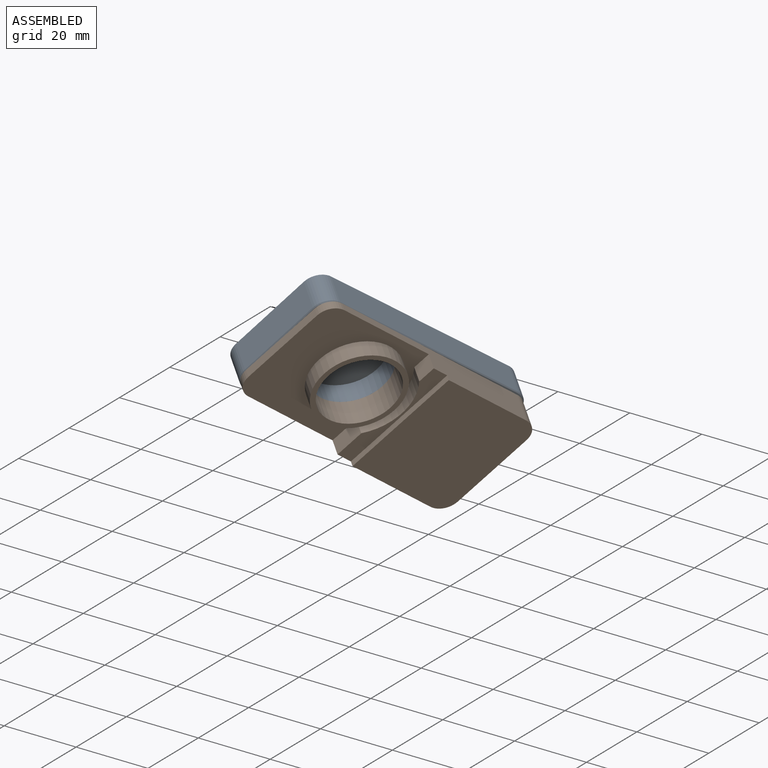
[diagram: assembled view]
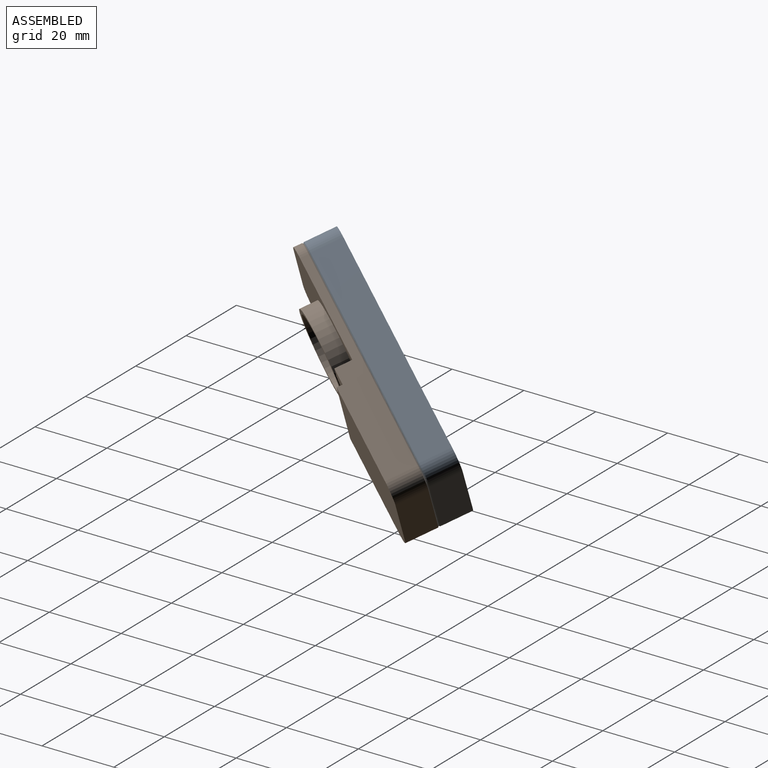
[diagram: assembled view, second angle]
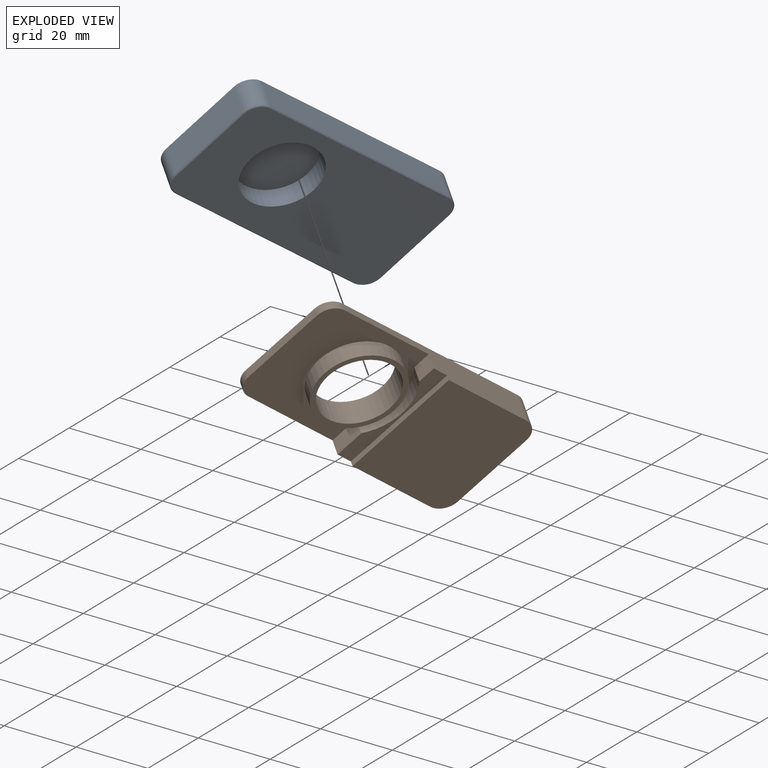
[diagram: exploded view]
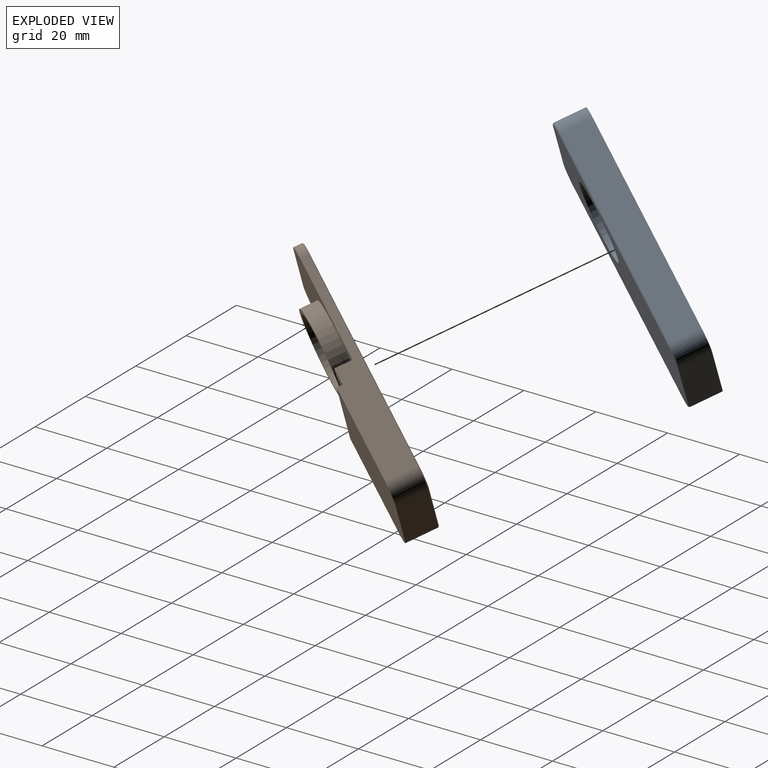
[diagram: exploded view, second angle]
ASSEMBLY  parts=2 mates=2
PART A: 20 faces, bbox 67.6x32x8.6 mm
  f0: plane 20.57x20.57mm, normal (0,0,1), area 332.5mm2, adj f1
  f1: cylinder r=10.29mm len=20.57mm, axis (0,0,1), area 348.9mm2, adj f0,f2
  f2: plane 67.06x31.5mm, normal (0,0,1), area 1763.5mm2, adj f1,f12,f13,f14,f15,f16,f17,f18
  f3: plane 22.86x8.32mm, normal (-1,0,0), area 190.2mm2, adj f4,f5,f11,f18
  f4: cylinder r=4.57mm len=8.32mm, axis (0,0,1), area 59.7mm2, adj f3,f6,f11,f16
  f5: cylinder r=4.57mm len=8.32mm, axis (0,0,1), area 59.7mm2, adj f3,f7,f11,f19
  f6: plane 58.42x8.32mm, normal (0,-1,0), area 486mm2, adj f4,f8,f11,f14
  f7: plane 58.42x8.32mm, normal (0,1,0), area 486mm2, adj f5,f10,f11,f17
  f8: cylinder r=4.57mm len=8.32mm, axis (0,0,1), area 59.7mm2, adj f6,f9,f11,f12
  f9: plane 22.86x8.32mm, normal (1,0,0), area 190.2mm2, adj f8,f10,f11,f13
  f10: cylinder r=4.57mm len=8.32mm, axis (0,0,1), area 59.7mm2, adj f7,f9,f11,f15
  f11: plane 67.56x32mm, normal (0,0,-1), area 2144.4mm2, adj f3,f4,f5,f6,f7,f8,f9,f10
  f12: cone r=4.32mm half-angle=45deg, axis (0,0,-1), area 2.5mm2, adj f2,f8,f13,f14
  f13: plane 22.86x0.25mm, normal (0.71,0,0.71), area 8.2mm2, adj f2,f9,f12,f15
  f14: plane 58.42x0.25mm, normal (0,-0.71,0.71), area 21mm2, adj f2,f6,f12,f16
  f15: cone r=4.32mm half-angle=45deg, axis (0,0,-1), area 2.5mm2, adj f2,f10,f13,f17
  f16: cone r=4.32mm half-angle=45deg, axis (0,0,-1), area 2.5mm2, adj f2,f4,f14,f18
  f17: plane 58.42x0.25mm, normal (0,0.71,0.71), area 21mm2, adj f2,f7,f15,f19
  f18: plane 22.86x0.25mm, normal (-0.71,0,0.71), area 8.2mm2, adj f2,f3,f16,f19
  f19: cone r=4.32mm half-angle=45deg, axis (0,0,-1), area 2.5mm2, adj f2,f5,f17,f18
PART B: 27 faces, bbox 67.6x32x8.6 mm
  f0: plane 22.86x2.22mm, normal (-1,0,0), area 50.8mm2, adj f4,f5,f11,f20
  f1: plane 58.42x8.32mm, normal (0,-1,0), area 308.1mm2, adj f4,f6,f8,f9,f10,f11,f12,f24
  f2: plane 58.42x8.32mm, normal (0,1,0), area 308.1mm2, adj f5,f7,f8,f9,f10,f11,f14,f21
  f3: plane 22.86x8.32mm, normal (1,0,0), area 190.2mm2, adj f6,f7,f9,f25
  f4: cylinder r=4.57mm len=4.57mm, axis (0,0,1), area 16mm2, adj f0,f1,f11,f22
  f5: cylinder r=4.57mm len=4.57mm, axis (0,0,1), area 16mm2, adj f0,f2,f11,f19
  f6: cylinder r=4.57mm len=8.32mm, axis (0,0,1), area 59.7mm2, adj f1,f3,f9,f26
  f7: cylinder r=4.57mm len=8.32mm, axis (0,0,1), area 59.7mm2, adj f2,f3,f9,f23
  f8: plane 32x4.45mm, normal (0,0,1), area 91.2mm2, adj f1,f2,f10,f12,f13,f14
  f9: plane 32x30.48mm, normal (0,0,1), area 966.5mm2, adj f1,f2,f3,f6,f7,f10
  f10: plane 32x1.52mm, normal (-1,0,0), area 48.8mm2, adj f1,f2,f8,f9
  f11: plane 36.49x32mm, normal (0,0,1), area 657.8mm2, adj f0,f1,f2,f4,f5,f12,f13,f14
  f12: plane 7.88x4.57mm, normal (-1,0,0), area 36mm2, adj f1,f8,f11,f13
  f13: cylinder r=14.01mm len=19.29mm, axis (0,0,1), area 97.3mm2, adj f8,f11,f12,f14
  f14: plane 4.84x4.57mm, normal (-1,0,0), area 22.1mm2, adj f2,f8,f11,f13
  f15: cylinder r=11.68mm len=23.37mm, axis (0,0,1), area 335.6mm2, adj f11,f17
  f16: cylinder r=10.29mm len=20.57mm, axis (0,0,1), area 455.6mm2, adj f17,f18
  f17: plane 23.37x23.37mm, normal (0,0,1), area 96.4mm2, adj f15,f16
  f18: plane 67.06x31.5mm, normal (0,0,-1), area 1763.5mm2, adj f16,f19,f20,f21,f22,f23,f24,f25
  f19: cone r=4.57mm half-angle=45deg, axis (0,0,1), area 2.5mm2, adj f5,f18,f20,f21
  f20: plane 22.86x0.25mm, normal (-0.71,0,-0.71), area 8.2mm2, adj f0,f18,f19,f22
  f21: plane 58.42x0.25mm, normal (0,0.71,-0.71), area 21mm2, adj f2,f18,f19,f23
  f22: cone r=4.57mm half-angle=45deg, axis (0,0,1), area 2.5mm2, adj f4,f18,f20,f24
  f23: cone r=4.57mm half-angle=45deg, axis (0,0,1), area 2.5mm2, adj f7,f18,f21,f25
  f24: plane 58.42x0.25mm, normal (0,-0.71,-0.71), area 21mm2, adj f1,f18,f22,f26
  f25: plane 22.86x0.25mm, normal (0.71,0,-0.71), area 8.2mm2, adj f3,f18,f23,f26
  f26: cone r=4.57mm half-angle=45deg, axis (0,0,1), area 2.5mm2, adj f6,f18,f24,f25
PLACE A rot(axis=(0.71,0.7,0.07),111.4deg) t=(2.15,13.61,5.53)mm
PLACE B rot(axis=(0.71,0.7,0.07),111.4deg) t=(2.05,13.55,5.43)mm
MATE planar B.f18 <-> A.f2  axis (-0.72,0.59,0.36) through (-3.61,20.14,7.05)mm
MATE cylindrical A.f1 <-> B.f15  axis (0.72,-0.59,-0.36) through (-6.83,10.7,16.2)mm
